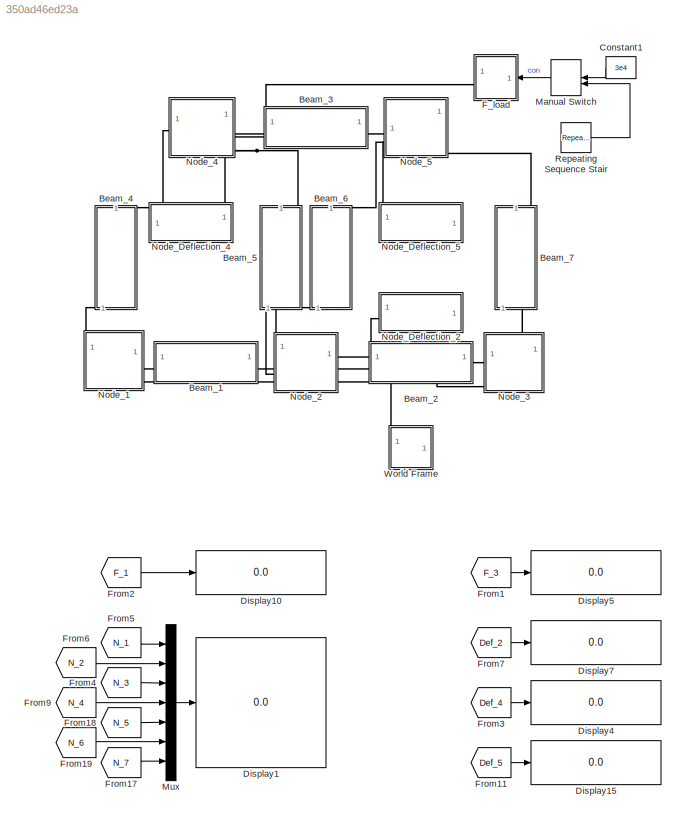
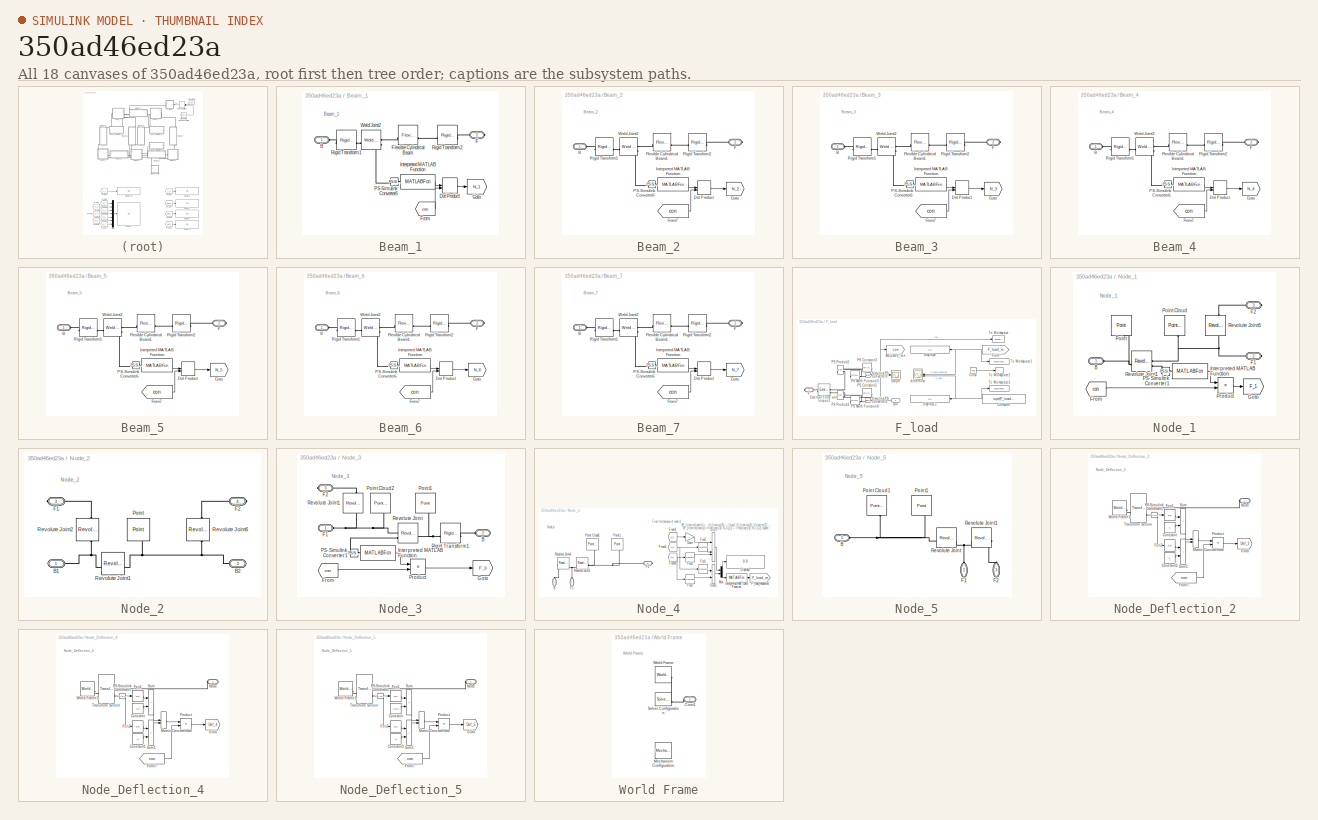
[diagram: thumbnail index - all 18 canvases of the model, root first then tree order]
MODEL slx_350ad46ed23a
KIND model
CONFIG AbsTol = 1e-3
CONFIG EnableMultiTasking = on
CONFIG FixedStep = 0.0001
CONFIG MaxStep = 0.01
CONFIG MinStep = auto
CONFIG RelTol = 1e-3
CONFIG SampleTimeConstraint = Unconstrained
CONFIG SolverName = ode15s
CONFIG StartTime = 0.0
CONFIG StopTime = 100
WORKSPACE source: MATLAB code (in-file)
WORKSPACE F_load_x = 2e3  (= 2000)
WORKSPACE F_load_y = 1e4  (= 10000)
WORKSPACE d = 0.01
WORKSPACE l = 1
WORKSPACE L = l  (= 1)
WORKSPACE H = L*cos(pi/6)
WORKSPACE Density = 7800
WORKSPACE E = 210
WORKSPACE G = 79
WORKSPACE bm = 0.01
WORKSPACE bk = 0.01
WORKSPACE b_rj = 1
WORKSPACE Size_frame = 30
BLOCK [SubSystem] Beam_1
BLOCK [PMIOPort] Beam_1/B
  Side = Left
BLOCK [DotProduct] Beam_1/Dot Product
  OutDataTypeStr = Inherit: Inherit via internal rule
BLOCK [PMIOPort] Beam_1/F
  Port = 2
  Side = Right
BLOCK [Reference] Beam_1/Flexible Cylindrical Beam  REF=sm_lib/Body Elements/Flexible Bodies/Beams/Flexible Cylindrical Beam
  AttributesFormatString = %<Length>
  SourceBlock = sm_lib/Body Elements/Flexible Bodies/Beams/Flexible Cylindrical Beam
  SourceType = Flexible Cylindrical Beam
BLOCK [From] Beam_1/From
  GotoTag = con
  TagVisibility = global
BLOCK [Goto] Beam_1/Goto
  GotoTag = N_1
  TagVisibility = global
BLOCK [MATLABFcn] Beam_1/Interpreted MATLAB Function
  AttributesFormatString = %<Description>
  Description = u(3)
  MATLABFcn = u(3)
BLOCK [Reference] Beam_1/PS-Simulink Converter6  REF=nesl_utility/PS-Simulink
Converter
  SourceBlock = nesl_utility/PS-Simulink\nConverter
  SourceType = PS-Simulink\nConverter
BLOCK [Reference] Beam_1/Rigid Transform1  REF=sm_lib/Frames and
Transforms/Rigid
Transform
  AttributesFormatString = %<RotationStandardAxis>\n%<RotationAngle>
  SourceBlock = sm_lib/Frames and\nTransforms/Rigid\nTransform
  SourceType = Rigid\nTransform
BLOCK [Reference] Beam_1/Rigid Transform2  REF=sm_lib/Frames and
Transforms/Rigid
Transform
  AttributesFormatString = %<RotationStandardAxis>\n%<RotationAngle>
  SourceBlock = sm_lib/Frames and\nTransforms/Rigid\nTransform
  SourceType = Rigid\nTransform
BLOCK [Reference] Beam_1/Weld Joint2  REF=sm_lib/Joints/Weld Joint
  AttributesFormatString = %<Description>
  Description = Force\nsensing
  SourceBlock = sm_lib/Joints/Weld Joint
  SourceType = Weld Joint
BLOCK [SubSystem] Beam_2
BLOCK [PMIOPort] Beam_2/B
  Side = Left
BLOCK [DotProduct] Beam_2/Dot Product
  OutDataTypeStr = Inherit: Inherit via internal rule
BLOCK [PMIOPort] Beam_2/F
  Port = 2
  Side = Right
BLOCK [Reference] Beam_2/Flexible Cylindrical Beam1  REF=sm_lib/Body Elements/Flexible Bodies/Beams/Flexible Cylindrical Beam
  AttributesFormatString = %<Description>
  SourceBlock = sm_lib/Body Elements/Flexible Bodies/Beams/Flexible Cylindrical Beam
  SourceType = Flexible Cylindrical Beam
BLOCK [From] Beam_2/From7
  GotoTag = con
  TagVisibility = global
BLOCK [Goto] Beam_2/Goto
  GotoTag = N_2
  TagVisibility = global
BLOCK [MATLABFcn] Beam_2/Interpreted MATLAB Function
  AttributesFormatString = %<Description>
  Description = u(3)
  MATLABFcn = u(3)
BLOCK [Reference] Beam_2/PS-Simulink Converter6  REF=nesl_utility/PS-Simulink
Converter
  SourceBlock = nesl_utility/PS-Simulink\nConverter
  SourceType = PS-Simulink\nConverter
BLOCK [Reference] Beam_2/Rigid Transform1  REF=sm_lib/Frames and
Transforms/Rigid
Transform
  AttributesFormatString = %<RotationStandardAxis>\n%<RotationAngle> deg
  SourceBlock = sm_lib/Frames and\nTransforms/Rigid\nTransform
  SourceType = Rigid\nTransform
BLOCK [Reference] Beam_2/Rigid Transform2  REF=sm_lib/Frames and
Transforms/Rigid
Transform
  AttributesFormatString = %<RotationStandardAxis>\n%<RotationAngle> deg
  SourceBlock = sm_lib/Frames and\nTransforms/Rigid\nTransform
  SourceType = Rigid\nTransform
BLOCK [Reference] Beam_2/Weld Joint2  REF=sm_lib/Joints/Weld Joint
  AttributesFormatString = %<Description>
  Description = Total force\nsensing
  SourceBlock = sm_lib/Joints/Weld Joint
  SourceType = Weld Joint
BLOCK [SubSystem] Beam_3
  NameLocation = top
BLOCK [PMIOPort] Beam_3/B
  Side = Left
BLOCK [DotProduct] Beam_3/Dot Product
  OutDataTypeStr = Inherit: Inherit via internal rule
BLOCK [PMIOPort] Beam_3/F
  Port = 2
  Side = Right
BLOCK [Reference] Beam_3/Flexible Cylindrical Beam1  REF=sm_lib/Body Elements/Flexible Bodies/Beams/Flexible Cylindrical Beam
  AttributesFormatString = %<Description>
  SourceBlock = sm_lib/Body Elements/Flexible Bodies/Beams/Flexible Cylindrical Beam
  SourceType = Flexible Cylindrical Beam
BLOCK [From] Beam_3/From7
  GotoTag = con
  TagVisibility = global
BLOCK [Goto] Beam_3/Goto
  GotoTag = N_3
  TagVisibility = global
BLOCK [MATLABFcn] Beam_3/Interpreted MATLAB Function
  AttributesFormatString = %<Description>
  Description = u(3)
  MATLABFcn = u(3)
BLOCK [Reference] Beam_3/PS-Simulink Converter6  REF=nesl_utility/PS-Simulink
Converter
  SourceBlock = nesl_utility/PS-Simulink\nConverter
  SourceType = PS-Simulink\nConverter
BLOCK [Reference] Beam_3/Rigid Transform1  REF=sm_lib/Frames and
Transforms/Rigid
Transform
  AttributesFormatString = %<RotationStandardAxis>\n%<RotationAngle> deg
  SourceBlock = sm_lib/Frames and\nTransforms/Rigid\nTransform
  SourceType = Rigid\nTransform
BLOCK [Reference] Beam_3/Rigid Transform2  REF=sm_lib/Frames and
Transforms/Rigid
Transform
  AttributesFormatString = %<RotationStandardAxis>\n%<RotationAngle> deg
  SourceBlock = sm_lib/Frames and\nTransforms/Rigid\nTransform
  SourceType = Rigid\nTransform
BLOCK [Reference] Beam_3/Weld Joint2  REF=sm_lib/Joints/Weld Joint
  AttributesFormatString = %<Description>
  Description = Total force\nsensing
  SourceBlock = sm_lib/Joints/Weld Joint
  SourceType = Weld Joint
BLOCK [SubSystem] Beam_4
  NameLocation = left
BLOCK [PMIOPort] Beam_4/B
  Side = Left
BLOCK [DotProduct] Beam_4/Dot Product
  OutDataTypeStr = Inherit: Inherit via internal rule
BLOCK [PMIOPort] Beam_4/F
  Port = 2
  Side = Right
BLOCK [Reference] Beam_4/Flexible Cylindrical Beam1  REF=sm_lib/Body Elements/Flexible Bodies/Beams/Flexible Cylindrical Beam
  AttributesFormatString = %<Description>
  SourceBlock = sm_lib/Body Elements/Flexible Bodies/Beams/Flexible Cylindrical Beam
  SourceType = Flexible Cylindrical Beam
BLOCK [From] Beam_4/From7
  GotoTag = con
  TagVisibility = global
BLOCK [Goto] Beam_4/Goto
  GotoTag = N_4
  TagVisibility = global
BLOCK [MATLABFcn] Beam_4/Interpreted MATLAB Function
  AttributesFormatString = %<Description>
  Description = u(3)
  MATLABFcn = u(3)
BLOCK [Reference] Beam_4/PS-Simulink Converter6  REF=nesl_utility/PS-Simulink
Converter
  SourceBlock = nesl_utility/PS-Simulink\nConverter
  SourceType = PS-Simulink\nConverter
BLOCK [Reference] Beam_4/Rigid Transform1  REF=sm_lib/Frames and
Transforms/Rigid
Transform
  AttributesFormatString = %<RotationStandardAxis>\n%<RotationAngle> deg
  SourceBlock = sm_lib/Frames and\nTransforms/Rigid\nTransform
  SourceType = Rigid\nTransform
BLOCK [Reference] Beam_4/Rigid Transform2  REF=sm_lib/Frames and
Transforms/Rigid
Transform
  AttributesFormatString = %<RotationStandardAxis>\n%<RotationAngle> deg
  SourceBlock = sm_lib/Frames and\nTransforms/Rigid\nTransform
  SourceType = Rigid\nTransform
BLOCK [Reference] Beam_4/Weld Joint2  REF=sm_lib/Joints/Weld Joint
  AttributesFormatString = %<Description>
  Description = Total force\nsensing
  SourceBlock = sm_lib/Joints/Weld Joint
  SourceType = Weld Joint
BLOCK [SubSystem] Beam_5
  NameLocation = left
BLOCK [PMIOPort] Beam_5/B
  Side = Left
BLOCK [DotProduct] Beam_5/Dot Product
  OutDataTypeStr = Inherit: Inherit via internal rule
BLOCK [PMIOPort] Beam_5/F
  Port = 2
  Side = Right
BLOCK [Reference] Beam_5/Flexible Cylindrical Beam1  REF=sm_lib/Body Elements/Flexible Bodies/Beams/Flexible Cylindrical Beam
  AttributesFormatString = %<Description>
  SourceBlock = sm_lib/Body Elements/Flexible Bodies/Beams/Flexible Cylindrical Beam
  SourceType = Flexible Cylindrical Beam
BLOCK [From] Beam_5/From7
  GotoTag = con
  TagVisibility = global
BLOCK [Goto] Beam_5/Goto
  GotoTag = N_5
  TagVisibility = global
BLOCK [MATLABFcn] Beam_5/Interpreted MATLAB Function
  AttributesFormatString = %<Description>
  Description = u(3)
  MATLABFcn = u(3)
BLOCK [Reference] Beam_5/PS-Simulink Converter6  REF=nesl_utility/PS-Simulink
Converter
  SourceBlock = nesl_utility/PS-Simulink\nConverter
  SourceType = PS-Simulink\nConverter
BLOCK [Reference] Beam_5/Rigid Transform1  REF=sm_lib/Frames and
Transforms/Rigid
Transform
  AttributesFormatString = %<RotationStandardAxis>\n%<RotationAngle> deg
  SourceBlock = sm_lib/Frames and\nTransforms/Rigid\nTransform
  SourceType = Rigid\nTransform
BLOCK [Reference] Beam_5/Rigid Transform2  REF=sm_lib/Frames and
Transforms/Rigid
Transform
  AttributesFormatString = %<RotationStandardAxis>\n%<RotationAngle> deg
  SourceBlock = sm_lib/Frames and\nTransforms/Rigid\nTransform
  SourceType = Rigid\nTransform
BLOCK [Reference] Beam_5/Weld Joint2  REF=sm_lib/Joints/Weld Joint
  AttributesFormatString = %<Description>
  Description = Total force\nsensing
  SourceBlock = sm_lib/Joints/Weld Joint
  SourceType = Weld Joint
BLOCK [SubSystem] Beam_6
  NameLocation = right
BLOCK [PMIOPort] Beam_6/B
  Side = Left
BLOCK [DotProduct] Beam_6/Dot Product
  OutDataTypeStr = Inherit: Inherit via internal rule
BLOCK [PMIOPort] Beam_6/F
  Port = 2
  Side = Right
BLOCK [Reference] Beam_6/Flexible Cylindrical Beam1  REF=sm_lib/Body Elements/Flexible Bodies/Beams/Flexible Cylindrical Beam
  AttributesFormatString = %<Description>
  SourceBlock = sm_lib/Body Elements/Flexible Bodies/Beams/Flexible Cylindrical Beam
  SourceType = Flexible Cylindrical Beam
BLOCK [From] Beam_6/From7
  GotoTag = con
  TagVisibility = global
BLOCK [Goto] Beam_6/Goto
  GotoTag = N_6
  TagVisibility = global
BLOCK [MATLABFcn] Beam_6/Interpreted MATLAB Function
  AttributesFormatString = %<Description>
  Description = u(3)
  MATLABFcn = u(3)
BLOCK [Reference] Beam_6/PS-Simulink Converter6  REF=nesl_utility/PS-Simulink
Converter
  SourceBlock = nesl_utility/PS-Simulink\nConverter
  SourceType = PS-Simulink\nConverter
BLOCK [Reference] Beam_6/Rigid Transform1  REF=sm_lib/Frames and
Transforms/Rigid
Transform
  AttributesFormatString = %<RotationStandardAxis>\n%<RotationAngle> deg
  SourceBlock = sm_lib/Frames and\nTransforms/Rigid\nTransform
  SourceType = Rigid\nTransform
BLOCK [Reference] Beam_6/Rigid Transform2  REF=sm_lib/Frames and
Transforms/Rigid
Transform
  AttributesFormatString = %<RotationStandardAxis>\n%<RotationAngle> deg
  SourceBlock = sm_lib/Frames and\nTransforms/Rigid\nTransform
  SourceType = Rigid\nTransform
BLOCK [Reference] Beam_6/Weld Joint2  REF=sm_lib/Joints/Weld Joint
  AttributesFormatString = %<Description>
  Description = Total force\nsensing
  SourceBlock = sm_lib/Joints/Weld Joint
  SourceType = Weld Joint
BLOCK [SubSystem] Beam_7
  NameLocation = left
BLOCK [PMIOPort] Beam_7/B
  Side = Left
BLOCK [DotProduct] Beam_7/Dot Product
  OutDataTypeStr = Inherit: Inherit via internal rule
BLOCK [PMIOPort] Beam_7/F
  Port = 2
  Side = Right
BLOCK [Reference] Beam_7/Flexible Cylindrical Beam1  REF=sm_lib/Body Elements/Flexible Bodies/Beams/Flexible Cylindrical Beam
  AttributesFormatString = %<Description>
  SourceBlock = sm_lib/Body Elements/Flexible Bodies/Beams/Flexible Cylindrical Beam
  SourceType = Flexible Cylindrical Beam
BLOCK [From] Beam_7/From7
  GotoTag = con
  TagVisibility = global
BLOCK [Goto] Beam_7/Goto
  GotoTag = N_7
  TagVisibility = global
BLOCK [MATLABFcn] Beam_7/Interpreted MATLAB Function
  AttributesFormatString = %<Description>
  Description = u(3)
  MATLABFcn = u(3)
BLOCK [Reference] Beam_7/PS-Simulink Converter6  REF=nesl_utility/PS-Simulink
Converter
  SourceBlock = nesl_utility/PS-Simulink\nConverter
  SourceType = PS-Simulink\nConverter
BLOCK [Reference] Beam_7/Rigid Transform1  REF=sm_lib/Frames and
Transforms/Rigid
Transform
  AttributesFormatString = %<RotationStandardAxis>\n%<RotationAngle> deg
  SourceBlock = sm_lib/Frames and\nTransforms/Rigid\nTransform
  SourceType = Rigid\nTransform
BLOCK [Reference] Beam_7/Rigid Transform2  REF=sm_lib/Frames and
Transforms/Rigid
Transform
  AttributesFormatString = %<RotationStandardAxis>\n%<RotationAngle> deg
  SourceBlock = sm_lib/Frames and\nTransforms/Rigid\nTransform
  SourceType = Rigid\nTransform
BLOCK [Reference] Beam_7/Weld Joint2  REF=sm_lib/Joints/Weld Joint
  AttributesFormatString = %<Description>
  Description = Total force\nsensing
  SourceBlock = sm_lib/Joints/Weld Joint
  SourceType = Weld Joint
BLOCK [Constant] Constant1
  NameLocation = top
  Value = 3e4
BLOCK [Display] Display1
  AttributesFormatString = %<Description>
  Decimation = 1
  Description = N
  Format = long_e
  NameLocation = top
BLOCK [Display] Display10
  AttributesFormatString = %<Description>
  Decimation = 1
  Description = N
  Format = long_e
  NameLocation = top
BLOCK [Display] Display15
  AttributesFormatString = %<Description>
  Decimation = 1
  Description = m
  Format = long_e
  NameLocation = top
BLOCK [Display] Display4
  AttributesFormatString = %<Description>
  Decimation = 1
  Description = m
  Format = long_e
  NameLocation = top
BLOCK [Display] Display5
  AttributesFormatString = %<Description>
  Decimation = 1
  Description = N
  Format = long_e
  NameLocation = top
BLOCK [Display] Display7
  AttributesFormatString = %<Description>
  Decimation = 1
  Description = m
  Format = long_e
  NameLocation = top
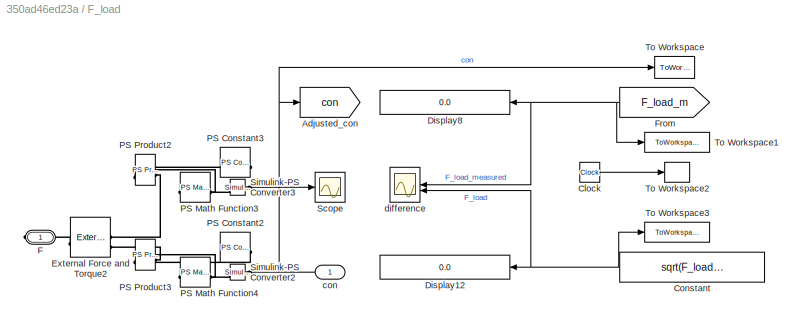
BLOCK [SubSystem] F_load
  AttributesFormatString = %<Fx> =   2000 N\n%<Fy> = 10000 N
BLOCK [Goto] F_load/Adjusted_con
  GotoTag = con
  TagVisibility = global
BLOCK [Clock] F_load/Clock
  Decimation = 1
BLOCK [Constant] F_load/Constant
  NameLocation = top
  Value = sqrt(F_load_x^2 + F_load_y^2)
BLOCK [Display] F_load/Display12
  AttributesFormatString = %<Description>
  Decimation = 1
  Description = N
  Format = long_e
  NameLocation = top
BLOCK [Display] F_load/Display8
  AttributesFormatString = %<Description>
  Decimation = 1
  Description = N
  Format = long_e
  NameLocation = top
BLOCK [Reference] F_load/External Force and Torque2  REF=sm_lib/Forces and
Torques/External Force
and Torque
  NameLocation = top
  SourceBlock = sm_lib/Forces and\nTorques/External Force\nand Torque
  SourceType = External Force\nand Torque
BLOCK [PMIOPort] F_load/F
  Side = Right
BLOCK [From] F_load/From
  GotoTag = F_load_m
  NameLocation = top
  TagVisibility = global
BLOCK [Reference] F_load/PS Constant2  REF=fl_lib/Physical Signals/Sources/PS Constant
  AttributesFormatString = %<constant>
  NameLocation = top
  SourceBlock = fl_lib/Physical Signals/Sources/PS Constant
  SourceType = PS Constant
BLOCK [Reference] F_load/PS Constant3  REF=fl_lib/Physical Signals/Sources/PS Constant
  AttributesFormatString = %<constant>
  NameLocation = top
  SourceBlock = fl_lib/Physical Signals/Sources/PS Constant
  SourceType = PS Constant
BLOCK [Reference] F_load/PS Math Function3  REF=fl_lib/Physical Signals/Functions/PS Math Function
  NameLocation = top
  SourceBlock = fl_lib/Physical Signals/Functions/PS Math Function
  SourceType = PS Math Function
BLOCK [Reference] F_load/PS Math Function4  REF=fl_lib/Physical Signals/Functions/PS Math Function
  NameLocation = top
  SourceBlock = fl_lib/Physical Signals/Functions/PS Math Function
  SourceType = PS Math Function
BLOCK [Reference] F_load/PS Product2  REF=fl_lib/Physical Signals/Functions/PS Product
  NameLocation = top
  SourceBlock = fl_lib/Physical Signals/Functions/PS Product
  SourceType = PS Product
BLOCK [Reference] F_load/PS Product3  REF=fl_lib/Physical Signals/Functions/PS Product
  NameLocation = top
  SourceBlock = fl_lib/Physical Signals/Functions/PS Product
  SourceType = PS Product
BLOCK [Scope] F_load/Scope
  Floating = off
  NumInputPorts = 1
  ScopeSpecificationString = Simulink.scopes.TimeScopeBlockCfg('CurrentConfiguration', extmgr.ConfigurationSet(extmgr.Configuration('Core','General UI',true),extmgr.Configuration('Core','Source UI',true),extmgr.Configuration('Sources','WiredSimulink',true,'DataLoggingVariableName','ScopeData1'),extmgr.Configuration('Visuals','Time Domain',true,'SerializedDisplays',{struct('MinYLimReal','-374887.5','MaxYLimReal','3374987.5','Y...<+1711ch>
BLOCK [Reference] F_load/Simulink-PS Converter2  REF=nesl_utility/Simulink-PS
Converter
  NameLocation = top
  SourceBlock = nesl_utility/Simulink-PS\nConverter
  SourceType = Simulink-PS\nConverter
BLOCK [Reference] F_load/Simulink-PS Converter3  REF=nesl_utility/Simulink-PS
Converter
  NameLocation = top
  SourceBlock = nesl_utility/Simulink-PS\nConverter
  SourceType = Simulink-PS\nConverter
BLOCK [ToWorkspace] F_load/To Workspace
  FixptAsFi = on
  MaxDataPoints = inf
  SampleTime = -1
  VariableName = con_out
BLOCK [ToWorkspace] F_load/To Workspace1
  Decimation = 3
  FixptAsFi = on
  MaxDataPoints = inf
  SampleTime = -1
  VariableName = F_load_m_out
BLOCK [ToWorkspace] F_load/To Workspace2
  Decimation = 3
  FixptAsFi = on
  MaxDataPoints = inf
  SampleTime = -1
  VariableName = t_out
BLOCK [ToWorkspace] F_load/To Workspace3
  Decimation = 3
  FixptAsFi = on
  MaxDataPoints = inf
  SampleTime = -1
  VariableName = F_load_out
BLOCK [Inport] F_load/con
BLOCK [Scope] F_load/difference
  Floating = off
  NumInputPorts = 2
  ScopeSpecificationString = Simulink.scopes.TimeScopeBlockCfg('CurrentConfiguration', extmgr.ConfigurationSet(extmgr.Configuration('Core','General UI',true),extmgr.Configuration('Core','Source UI',true),extmgr.Configuration('Sources','WiredSimulink',true),extmgr.Configuration('Visuals','Time Domain',true,'SerializedDisplays',{struct('MinYLimReal','10198.01845','MaxYLimReal','10198.0597','YLabelReal','','MinYLimMag','10198.01...<+1967ch>
BLOCK [From] From1
  GotoTag = F_3
  TagVisibility = global
BLOCK [From] From11
  GotoTag = Def_5
  TagVisibility = global
BLOCK [From] From17
  GotoTag = N_7
  TagVisibility = global
BLOCK [From] From18
  GotoTag = N_5
  TagVisibility = global
BLOCK [From] From19
  GotoTag = N_6
  TagVisibility = global
BLOCK [From] From2
  GotoTag = F_1
  TagVisibility = global
BLOCK [From] From3
  GotoTag = Def_4
  TagVisibility = global
BLOCK [From] From4
  GotoTag = N_3
  TagVisibility = global
BLOCK [From] From5
  GotoTag = N_1
  TagVisibility = global
BLOCK [From] From6
  GotoTag = N_2
  TagVisibility = global
BLOCK [From] From7
  GotoTag = Def_2
  TagVisibility = global
BLOCK [From] From9
  GotoTag = N_4
  TagVisibility = global
BLOCK [ManualSwitch] Manual Switch
  CurrentSetting = 0
  NameLocation = top
BLOCK [Mux] Mux
  DisplayOption = bar
  Inputs = 7
BLOCK [SubSystem] Node_1
  NameLocation = left
  PortSchema = {"entries":[{"content":{"sides":[{"content":{},"type":"ConnectorPlacement.EquallySpacedRectSide","uuid":"d437545a-b6cd-405c-92f5-dfd428dd316c"},{"content":{"connectorIds":["RConn1"],"side":"RIGHT"},"type":"ConnectorPlacement.EquallySpacedRectSide","uuid":"a6c866cb-015a-4ba6-a725-1ad5f0a48a96"},{"content":{"connectorIds":["LConn1"],"side":"TOP"},"type":"ConnectorPlacement.EquallySpacedRectSide","uu...<+380ch>
BLOCK [PMIOPort] Node_1/B
  Side = Left
BLOCK [PMIOPort] Node_1/F1
  Port = 2
  Side = Right
BLOCK [PMIOPort] Node_1/F2
  Port = 3
  Side = Right
BLOCK [From] Node_1/From
  GotoTag = con
  TagVisibility = global
BLOCK [Goto] Node_1/Goto
  GotoTag = F_1
  TagVisibility = global
BLOCK [MATLABFcn] Node_1/Interpreted MATLAB Function
  AttributesFormatString = %<Description>
  Description = u(1:2)
  MATLABFcn = u(1:2)
BLOCK [Reference] Node_1/PS-Simulink Converter1  REF=nesl_utility/PS-Simulink
Converter
  SourceBlock = nesl_utility/PS-Simulink\nConverter
  SourceType = PS-Simulink\nConverter
BLOCK [Reference] Node_1/Point  REF=sm_lib/Curves and Surfaces/Point
  AttributesFormatString = %<Description>
  Description = Frame\nvisualization
  NameLocation = right
  SourceBlock = sm_lib/Curves and Surfaces/Point
  SourceType = Point
BLOCK [Reference] Node_1/Point Cloud  REF=sm_lib/Curves and Surfaces/Point Cloud
  AttributesFormatString = %<Description>
  Description = Graphic\nsphere
  NameLocation = right
  SourceBlock = sm_lib/Curves and Surfaces/Point Cloud
  SourceType = Point Cloud
BLOCK [Product] Node_1/Product
BLOCK [Reference] Node_1/Revolute Joint1  REF=sm_lib/Joints/Revolute Joint
  Description = Total force\nsensing
  SourceBlock = sm_lib/Joints/Revolute Joint
  SourceType = Revolute Joint
BLOCK [Reference] Node_1/Revolute Joint6  REF=sm_lib/Joints/Revolute Joint
  AttributesFormatString = %<PositionTargetValue>
  NameLocation = right
  SourceBlock = sm_lib/Joints/Revolute Joint
  SourceType = Revolute Joint
BLOCK [SubSystem] Node_2
  PortSchema = {"entries":[{"content":{"sides":[{"content":{"connectorIds":["LConn1"]},"type":"ConnectorPlacement.EquallySpacedRectSide","uuid":"afef6c51-8d1a-46bc-b1c6-0f4974bd4a7e"},{"content":{"connectorIds":["RConn1"],"side":"RIGHT"},"type":"ConnectorPlacement.EquallySpacedRectSide","uuid":"d0b349a1-0497-425d-af85-a98150ab0495"},{"content":{"side":"TOP"},"type":"ConnectorPlacement.EquallySpacedRectSide","uui...<+388ch>
BLOCK [PMIOPort] Node_2/B1
  Side = Left
BLOCK [PMIOPort] Node_2/B2
  Port = 2
  Side = Right
BLOCK [PMIOPort] Node_2/F1
  Port = 3
  Side = Right
BLOCK [PMIOPort] Node_2/F2
  Port = 4
  Side = Right
BLOCK [Reference] Node_2/Point  REF=sm_lib/Curves and Surfaces/Point
  AttributesFormatString = %<Description>
  Description = Frame\nvisualization
  NameLocation = right
  SourceBlock = sm_lib/Curves and Surfaces/Point
  SourceType = Point
BLOCK [Reference] Node_2/Revolute Joint1  REF=sm_lib/Joints/Revolute Joint
  AttributesFormatString = %<PositionTargetValue>
  SourceBlock = sm_lib/Joints/Revolute Joint
  SourceType = Revolute Joint
BLOCK [Reference] Node_2/Revolute Joint2  REF=sm_lib/Joints/Revolute Joint
  NameLocation = right
  SourceBlock = sm_lib/Joints/Revolute Joint
  SourceType = Revolute Joint
BLOCK [Reference] Node_2/Revolute Joint6  REF=sm_lib/Joints/Revolute Joint
  AttributesFormatString = %<PositionTargetValue>
  NameLocation = right
  SourceBlock = sm_lib/Joints/Revolute Joint
  SourceType = Revolute Joint
BLOCK [SubSystem] Node_3
  NameLocation = right
  PortSchema = {"entries":[{"content":{"sides":[{"content":{"connectorIds":["LConn1"]},"type":"ConnectorPlacement.EquallySpacedRectSide","uuid":"c52cac6f-2005-4bfe-89ae-e2a0406bbacd"},{"content":{"side":"RIGHT"},"type":"ConnectorPlacement.EquallySpacedRectSide","uuid":"5ceadddb-1bc3-405b-9850-d33e8ff0b50d"},{"content":{"connectorIds":["LConn2"],"side":"TOP"},"type":"ConnectorPlacement.EquallySpacedRectSide","uui...<+379ch>
BLOCK [PMIOPort] Node_3/B
  Port = 2
  Side = Left
BLOCK [PMIOPort] Node_3/F1
  Side = Left
BLOCK [PMIOPort] Node_3/F2
  Port = 3
  Side = Right
BLOCK [From] Node_3/From
  GotoTag = con
  TagVisibility = global
BLOCK [Goto] Node_3/Goto
  GotoTag = F_3
  TagVisibility = global
BLOCK [MATLABFcn] Node_3/Interpreted MATLAB Function
  AttributesFormatString = %<Description>
  Description = u(1:2)
  MATLABFcn = u(1:2)
BLOCK [Reference] Node_3/PS-Simulink Converter1  REF=nesl_utility/PS-Simulink
Converter
  SourceBlock = nesl_utility/PS-Simulink\nConverter
  SourceType = PS-Simulink\nConverter
BLOCK [Reference] Node_3/Point Cloud2  REF=sm_lib/Curves and Surfaces/Point Cloud
  AttributesFormatString = %<Description>
  Description = Graphic\nsphere
  NameLocation = right
  SourceBlock = sm_lib/Curves and Surfaces/Point Cloud
  SourceType = Point Cloud
BLOCK [Reference] Node_3/Point1  REF=sm_lib/Curves and Surfaces/Point
  AttributesFormatString = %<Description>
  Description = Frame\nvisualization
  NameLocation = right
  SourceBlock = sm_lib/Curves and Surfaces/Point
  SourceType = Point
BLOCK [Product] Node_3/Product
BLOCK [Reference] Node_3/Revolute Joint  REF=sm_lib/Joints/Revolute Joint
  NameLocation = top
  SourceBlock = sm_lib/Joints/Revolute Joint
  SourceType = Revolute Joint
BLOCK [Reference] Node_3/Revolute Joint1  REF=sm_lib/Joints/Revolute Joint
  NameLocation = right
  SourceBlock = sm_lib/Joints/Revolute Joint
  SourceType = Revolute Joint
BLOCK [Reference] Node_3/Rigid Transform1  REF=sm_lib/Frames and
Transforms/Rigid
Transform
  AttributesFormatString = %<Description>\n%<TranslationCartesianOffset>
  Description = Offset
  SourceBlock = sm_lib/Frames and\nTransforms/Rigid\nTransform
  SourceType = Rigid\nTransform
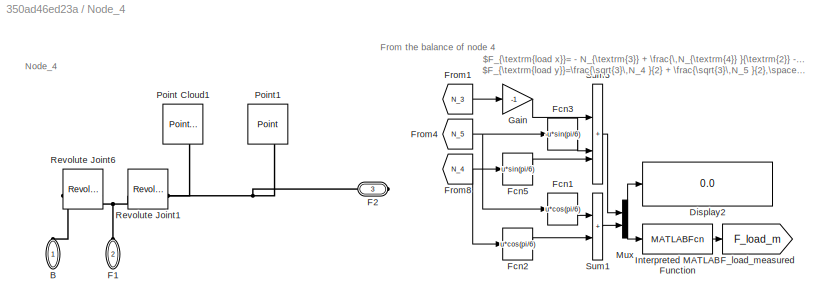
BLOCK [SubSystem] Node_4
  NameLocation = top
  PortSchema = {"entries":[{"content":{"sides":[{"content":{},"type":"ConnectorPlacement.EquallySpacedRectSide","uuid":"beaa1c3e-db26-40c7-ae29-b74306d70d13"},{"content":{"connectorIds":["RConn1"],"side":"RIGHT"},"type":"ConnectorPlacement.EquallySpacedRectSide","uuid":"a69b9587-50d9-4008-b2d1-888e5f048004"},{"content":{"connectorIds":["LConn1","LConn2"],"side":"TOP"},"type":"ConnectorPlacement.EquallySpacedRect...<+237ch>
BLOCK [PMIOPort] Node_4/B
  NameLocation = right
  Side = Left
BLOCK [Display] Node_4/Display2
  AttributesFormatString = %<Description>
  Decimation = 1
  Description = N
  Format = long_e
  NameLocation = top
BLOCK [PMIOPort] Node_4/F1
  NameLocation = right
  Port = 2
  Side = Left
BLOCK [PMIOPort] Node_4/F2
  Port = 3
  Side = Right
BLOCK [Goto] Node_4/F_load_measured
  GotoTag = F_load_m
  TagVisibility = global
BLOCK [Fcn] Node_4/Fcn1
  AttributesFormatString = %<Expr>
  Description = -u/sqrt(2)
  Expr = u*cos(pi/6)
BLOCK [Fcn] Node_4/Fcn2
  AttributesFormatString = %<Expr>
  Description = -u/sqrt(2)
  Expr = u*cos(pi/6)
BLOCK [Fcn] Node_4/Fcn3
  AttributesFormatString = %<Expr>
  Description = -u/sqrt(2)
  Expr = -u*sin(pi/6)
BLOCK [Fcn] Node_4/Fcn5
  AttributesFormatString = %<Expr>
  Description = -u/sqrt(2)
  Expr = u*sin(pi/6)
BLOCK [From] Node_4/From1
  GotoTag = N_3
  TagVisibility = global
BLOCK [From] Node_4/From4
  GotoTag = N_5
  TagVisibility = global
BLOCK [From] Node_4/From8
  GotoTag = N_4
  TagVisibility = global
BLOCK [Gain] Node_4/Gain
  Gain = -1
BLOCK [MATLABFcn] Node_4/Interpreted MATLAB Function
  AttributesFormatString = %<Description>
  Description = Norm
  MATLABFcn = norm(u)
BLOCK [Mux] Node_4/Mux
  DisplayOption = bar
  Inputs = 2
BLOCK [Reference] Node_4/Point Cloud1  REF=sm_lib/Curves and Surfaces/Point Cloud
  AttributesFormatString = %<Description>
  Description = Graphic\nsphere
  NameLocation = right
  SourceBlock = sm_lib/Curves and Surfaces/Point Cloud
  SourceType = Point Cloud
BLOCK [Reference] Node_4/Point1  REF=sm_lib/Curves and Surfaces/Point
  AttributesFormatString = %<Description>
  Description = Frame\nvisualization
  NameLocation = right
  SourceBlock = sm_lib/Curves and Surfaces/Point
  SourceType = Point
BLOCK [Reference] Node_4/Revolute Joint1  REF=sm_lib/Joints/Revolute Joint
  AttributesFormatString = %<PositionTargetValue>
  SourceBlock = sm_lib/Joints/Revolute Joint
  SourceType = Revolute Joint
BLOCK [Reference] Node_4/Revolute Joint6  REF=sm_lib/Joints/Revolute Joint
  AttributesFormatString = %<PositionTargetValue>
  SourceBlock = sm_lib/Joints/Revolute Joint
  SourceType = Revolute Joint
BLOCK [Sum] Node_4/Sum1
  IconShape = rectangular
  NameLocation = top
BLOCK [Sum] Node_4/Sum3
  IconShape = rectangular
  Inputs = 3
  NameLocation = top
BLOCK [SubSystem] Node_5
  NameLocation = top
  PortSchema = {"entries":[{"content":{"sides":[{"content":{"connectorIds":["LConn1"]},"type":"ConnectorPlacement.EquallySpacedRectSide","uuid":"beaa1c3e-db26-40c7-ae29-b74306d70d13"},{"content":{"side":"RIGHT"},"type":"ConnectorPlacement.EquallySpacedRectSide","uuid":"a69b9587-50d9-4008-b2d1-888e5f048004"},{"content":{"connectorIds":["LConn2","LConn3"],"side":"TOP"},"type":"ConnectorPlacement.EquallySpacedRectS...<+236ch>
BLOCK [PMIOPort] Node_5/B
  Side = Left
BLOCK [PMIOPort] Node_5/F1
  NameLocation = right
  Port = 2
  Side = Left
BLOCK [PMIOPort] Node_5/F2
  NameLocation = right
  Port = 3
  Side = Left
BLOCK [Reference] Node_5/Point Cloud1  REF=sm_lib/Curves and Surfaces/Point Cloud
  AttributesFormatString = %<Description>
  Description = Graphic\nsphere
  NameLocation = right
  SourceBlock = sm_lib/Curves and Surfaces/Point Cloud
  SourceType = Point Cloud
BLOCK [Reference] Node_5/Point1  REF=sm_lib/Curves and Surfaces/Point
  AttributesFormatString = %<Description>
  Description = Frame\nvisualization
  NameLocation = right
  SourceBlock = sm_lib/Curves and Surfaces/Point
  SourceType = Point
BLOCK [Reference] Node_5/Revolute Joint  REF=sm_lib/Joints/Revolute Joint
  SourceBlock = sm_lib/Joints/Revolute Joint
  SourceType = Revolute Joint
BLOCK [Reference] Node_5/Revolute Joint1  REF=sm_lib/Joints/Revolute Joint
  AttributesFormatString = %<PositionTargetValue>
  SourceBlock = sm_lib/Joints/Revolute Joint
  SourceType = Revolute Joint
BLOCK [SubSystem] Node_Deflection_2
  NameLocation = top
BLOCK [Constant] Node_Deflection_2/Constant
  Value = -L
BLOCK [Constant] Node_Deflection_2/Constant1
  Value = 0
BLOCK [Fcn] Node_Deflection_2/Fcn1
  Expr = u(1)
BLOCK [Fcn] Node_Deflection_2/Fcn2
  Expr = u(2)
BLOCK [From] Node_Deflection_2/From7
  GotoTag = con
  TagVisibility = global
BLOCK [Goto] Node_Deflection_2/Goto
  GotoTag = Def_2
  TagVisibility = global
BLOCK [Concatenate] Node_Deflection_2/Matrix Concatenate
  AttributesFormatString = %<Description>
  ConcatenateDimension = 2
BLOCK [PMIOPort] Node_Deflection_2/Node
  Side = Left
BLOCK [Reference] Node_Deflection_2/PS-Simulink Converter1  REF=nesl_utility/PS-Simulink
Converter
  SourceBlock = nesl_utility/PS-Simulink\nConverter
  SourceType = PS-Simulink\nConverter
BLOCK [Product] Node_Deflection_2/Product
BLOCK [Sum] Node_Deflection_2/Sum
  IconShape = rectangular
  Inputs = 2
BLOCK [Sum] Node_Deflection_2/Sum1
  IconShape = rectangular
  Inputs = 2
BLOCK [Reference] Node_Deflection_2/Transform Sensor  REF=sm_lib/Frames and
Transforms/Transform
Sensor
  AttributesFormatString = %<Description>
  Description = Translation\n[x, y, z]
  SourceBlock = sm_lib/Frames and\nTransforms/Transform\nSensor
  SourceType = Transform\nSensor
BLOCK [Reference] Node_Deflection_2/World Frame1  REF=sm_lib/Frames and
Transforms/World Frame
  SourceBlock = sm_lib/Frames and\nTransforms/World Frame
  SourceType = World Frame
BLOCK [SubSystem] Node_Deflection_4
  NameLocation = top
BLOCK [Constant] Node_Deflection_4/Constant
  Value = -L/2
BLOCK [Constant] Node_Deflection_4/Constant1
  Value = -H
BLOCK [Fcn] Node_Deflection_4/Fcn1
  Expr = u(1)
BLOCK [Fcn] Node_Deflection_4/Fcn2
  Expr = u(2)
BLOCK [From] Node_Deflection_4/From7
  GotoTag = con
  TagVisibility = global
BLOCK [Goto] Node_Deflection_4/Goto
  GotoTag = Def_4
  TagVisibility = global
BLOCK [Concatenate] Node_Deflection_4/Matrix Concatenate
  AttributesFormatString = %<Description>
  ConcatenateDimension = 2
BLOCK [PMIOPort] Node_Deflection_4/Node
  Side = Left
BLOCK [Reference] Node_Deflection_4/PS-Simulink Converter1  REF=nesl_utility/PS-Simulink
Converter
  SourceBlock = nesl_utility/PS-Simulink\nConverter
  SourceType = PS-Simulink\nConverter
BLOCK [Product] Node_Deflection_4/Product
BLOCK [Sum] Node_Deflection_4/Sum
  IconShape = rectangular
  Inputs = 2
BLOCK [Sum] Node_Deflection_4/Sum1
  IconShape = rectangular
  Inputs = 2
BLOCK [Reference] Node_Deflection_4/Transform Sensor  REF=sm_lib/Frames and
Transforms/Transform
Sensor
  AttributesFormatString = %<Description>
  Description = Translation\n[x, y, z]
  SourceBlock = sm_lib/Frames and\nTransforms/Transform\nSensor
  SourceType = Transform\nSensor
BLOCK [Reference] Node_Deflection_4/World Frame1  REF=sm_lib/Frames and
Transforms/World Frame
  SourceBlock = sm_lib/Frames and\nTransforms/World Frame
  SourceType = World Frame
BLOCK [SubSystem] Node_Deflection_5
  NameLocation = top
BLOCK [Constant] Node_Deflection_5/Constant
  Value = -L*3/2
BLOCK [Constant] Node_Deflection_5/Constant3
  Value = -H
BLOCK [Fcn] Node_Deflection_5/Fcn1
  Expr = u(1)
BLOCK [Fcn] Node_Deflection_5/Fcn2
  Expr = u(2)
BLOCK [From] Node_Deflection_5/From7
  GotoTag = con
  TagVisibility = global
BLOCK [Goto] Node_Deflection_5/Goto
  GotoTag = Def_5
  TagVisibility = global
BLOCK [Concatenate] Node_Deflection_5/Matrix Concatenate
  AttributesFormatString = %<Description>
  ConcatenateDimension = 2
BLOCK [PMIOPort] Node_Deflection_5/Node
  Side = Left
BLOCK [Reference] Node_Deflection_5/PS-Simulink Converter1  REF=nesl_utility/PS-Simulink
Converter
  SourceBlock = nesl_utility/PS-Simulink\nConverter
  SourceType = PS-Simulink\nConverter
BLOCK [Product] Node_Deflection_5/Product
BLOCK [Sum] Node_Deflection_5/Sum
  IconShape = rectangular
  Inputs = 2
BLOCK [Sum] Node_Deflection_5/Sum1
  IconShape = rectangular
  Inputs = 2
BLOCK [Reference] Node_Deflection_5/Transform Sensor  REF=sm_lib/Frames and
Transforms/Transform
Sensor
  AttributesFormatString = %<Description>
  Description = Translation\n[x, y, z]
  SourceBlock = sm_lib/Frames and\nTransforms/Transform\nSensor
  SourceType = Transform\nSensor
BLOCK [Reference] Node_Deflection_5/World Frame1  REF=sm_lib/Frames and
Transforms/World Frame
  SourceBlock = sm_lib/Frames and\nTransforms/World Frame
  SourceType = World Frame
BLOCK [Reference] Repeating Sequence Stair  REF=simulink/Sources/Repeating
Sequence
Stair
  AttributesFormatString = %<OutValues>\nSampleTime=%<tsamp> s
  SourceBlock = simulink/Sources/Repeating\nSequence\nStair
  SourceType = Repeating Sequence Stair
BLOCK [SubSystem] World Frame
  PortSchema = {"entries":[{"content":{"sides":[{"content":{},"type":"ConnectorPlacement.EquallySpacedRectSide","uuid":"6a8e21d3-b0b2-4758-a6c8-a7be5ecb73b9"},{"content":{"side":"RIGHT"},"type":"ConnectorPlacement.EquallySpacedRectSide","uuid":"42798d98-bef9-4838-9935-056c1ef1235d"},{"content":{"connectorIds":["LConn1"],"side":"TOP"},"type":"ConnectorPlacement.EquallySpacedRectSide","uuid":"7c8f84cf-9fc0-4b00-b0...<+202ch>
BLOCK [PMIOPort] World Frame/Conn1
  Side = Left
BLOCK [Reference] World Frame/Mechanism Configuration  REF=sm_lib/Utilities/Mechanism
Configuration
  SourceBlock = sm_lib/Utilities/Mechanism\nConfiguration
  SourceType = Mechanism\nConfiguration
BLOCK [Reference] World Frame/Solver Configuration  REF=nesl_utility/Solver
Configuration
  SourceBlock = nesl_utility/Solver\nConfiguration
  SourceType = Solver\nConfiguration
BLOCK [Reference] World Frame/World Frame  REF=sm_lib/Frames and
Transforms/World Frame
  SourceBlock = sm_lib/Frames and\nTransforms/World Frame
  SourceType = World Frame
ANNOTATION Beam_1: Beam_1
ANNOTATION Beam_2: Beam_2
ANNOTATION Beam_3: Beam_3
ANNOTATION Beam_4: Beam_4
ANNOTATION Beam_5: Beam_5
ANNOTATION Beam_6: Beam_6
ANNOTATION Beam_7: Beam_7
ANNOTATION Node_1: Node_1
ANNOTATION Node_2: Node_2
ANNOTATION Node_3: Node_3
ANNOTATION Node_4: $F_{\textrm{load x}}= - N_{\textrm{3}} + \frac{\,N_{\textrm{4}} }{\textrm{2}} - \frac{\,N_{\textrm{5}} }{\textrm{2}},\space(1)$ $F_{\textrm{load y}}=\frac{\sqrt{3}\,N_4 }{2} + \frac{\sqrt{3}\,N_5 }{2},\space(2)$
ANNOTATION Node_4: From the balance of node 4
ANNOTATION Node_4: Node_4
ANNOTATION Node_5: Node_5
ANNOTATION Node_Deflection_2: Node_Deflection_2
ANNOTATION Node_Deflection_4: Node_Deflection_4
ANNOTATION Node_Deflection_5: Node_Deflection_5
ANNOTATION World Frame: World Frame
LINE Beam_1/Dot Product:1 -> Beam_1/Goto:1
LINE Beam_1/From:1 -> Beam_1/Dot Product:2
LINE Beam_1/Interpreted MATLAB Function:1 -> Beam_1/Dot Product:1
LINE Beam_1/PS-Simulink Converter6:1 -> Beam_1/Interpreted MATLAB Function:1
LINE Beam_2/Dot Product:1 -> Beam_2/Goto:1
LINE Beam_2/From7:1 -> Beam_2/Dot Product:2
LINE Beam_2/Interpreted MATLAB Function:1 -> Beam_2/Dot Product:1
LINE Beam_2/PS-Simulink Converter6:1 -> Beam_2/Interpreted MATLAB Function:1
LINE Beam_3/Dot Product:1 -> Beam_3/Goto:1
LINE Beam_3/From7:1 -> Beam_3/Dot Product:2
LINE Beam_3/Interpreted MATLAB Function:1 -> Beam_3/Dot Product:1
LINE Beam_3/PS-Simulink Converter6:1 -> Beam_3/Interpreted MATLAB Function:1
LINE Beam_4/Dot Product:1 -> Beam_4/Goto:1
LINE Beam_4/From7:1 -> Beam_4/Dot Product:2
LINE Beam_4/Interpreted MATLAB Function:1 -> Beam_4/Dot Product:1
LINE Beam_4/PS-Simulink Converter6:1 -> Beam_4/Interpreted MATLAB Function:1
LINE Beam_5/Dot Product:1 -> Beam_5/Goto:1
LINE Beam_5/From7:1 -> Beam_5/Dot Product:2
LINE Beam_5/Interpreted MATLAB Function:1 -> Beam_5/Dot Product:1
LINE Beam_5/PS-Simulink Converter6:1 -> Beam_5/Interpreted MATLAB Function:1
LINE Beam_6/Dot Product:1 -> Beam_6/Goto:1
LINE Beam_6/From7:1 -> Beam_6/Dot Product:2
LINE Beam_6/Interpreted MATLAB Function:1 -> Beam_6/Dot Product:1
LINE Beam_6/PS-Simulink Converter6:1 -> Beam_6/Interpreted MATLAB Function:1
LINE Beam_7/Dot Product:1 -> Beam_7/Goto:1
LINE Beam_7/From7:1 -> Beam_7/Dot Product:2
LINE Beam_7/Interpreted MATLAB Function:1 -> Beam_7/Dot Product:1
LINE Beam_7/PS-Simulink Converter6:1 -> Beam_7/Interpreted MATLAB Function:1
LINE Constant1:1 -> Manual Switch:1
LINE F_load/Clock:1 -> F_load/To Workspace2:1
NET F_load/Constant:1 -> F_load/Display12:1, F_load/To Workspace3:1, F_load/difference:2
NET F_load/From:1 -> F_load/Display8:1, F_load/To Workspace1:1, F_load/difference:1
NET F_load/con:1 -> F_load/Adjusted_con:1, F_load/Scope:1, F_load/Simulink-PS Converter2:1, F_load/Simulink-PS Converter3:1, F_load/To Workspace:1
LINE From11:1 -> Display15:1
LINE From17:1 -> Mux:7
LINE From18:1 -> Mux:5
LINE From19:1 -> Mux:6
LINE From1:1 -> Display5:1
LINE From2:1 -> Display10:1
LINE From3:1 -> Display4:1
LINE From4:1 -> Mux:3
LINE From5:1 -> Mux:1
LINE From6:1 -> Mux:2
LINE From7:1 -> Display7:1
LINE From9:1 -> Mux:4
LINE Manual Switch:1 -> F_load:1
LINE Mux:1 -> Display1:1
LINE Node_1/From:1 -> Node_1/Product:2
LINE Node_1/Interpreted MATLAB Function:1 -> Node_1/Product:1
LINE Node_1/PS-Simulink Converter1:1 -> Node_1/Interpreted MATLAB Function:1
LINE Node_1/Product:1 -> Node_1/Goto:1
LINE Node_3/From:1 -> Node_3/Product:2
LINE Node_3/Interpreted MATLAB Function:1 -> Node_3/Product:1
LINE Node_3/PS-Simulink Converter1:1 -> Node_3/Interpreted MATLAB Function:1
LINE Node_3/Product:1 -> Node_3/Goto:1
LINE Node_4/Fcn1:1 -> Node_4/Sum1:1
LINE Node_4/Fcn2:1 -> Node_4/Sum1:2
LINE Node_4/Fcn3:1 -> Node_4/Sum3:2
LINE Node_4/Fcn5:1 -> Node_4/Sum3:3
LINE Node_4/From1:1 -> Node_4/Gain:1
NET Node_4/From4:1 -> Node_4/Fcn1:1, Node_4/Fcn3:1
NET Node_4/From8:1 -> Node_4/Fcn2:1, Node_4/Fcn5:1
LINE Node_4/Gain:1 -> Node_4/Sum3:1
LINE Node_4/Interpreted MATLAB Function:1 -> Node_4/F_load_measured:1
NET Node_4/Mux:1 -> Node_4/Display2:1, Node_4/Interpreted MATLAB Function:1
LINE Node_4/Sum1:1 -> Node_4/Mux:2
LINE Node_4/Sum3:1 -> Node_4/Mux:1
LINE Node_Deflection_2/Constant1:1 -> Node_Deflection_2/Sum1:2
LINE Node_Deflection_2/Constant:1 -> Node_Deflection_2/Sum:2
LINE Node_Deflection_2/Fcn1:1 -> Node_Deflection_2/Sum:1
LINE Node_Deflection_2/Fcn2:1 -> Node_Deflection_2/Sum1:1
LINE Node_Deflection_2/From7:1 -> Node_Deflection_2/Product:2
LINE Node_Deflection_2/Matrix Concatenate:1 -> Node_Deflection_2/Product:1
NET Node_Deflection_2/PS-Simulink Converter1:1 -> Node_Deflection_2/Fcn1:1, Node_Deflection_2/Fcn2:1
LINE Node_Deflection_2/Product:1 -> Node_Deflection_2/Goto:1
LINE Node_Deflection_2/Sum1:1 -> Node_Deflection_2/Matrix Concatenate:2
LINE Node_Deflection_2/Sum:1 -> Node_Deflection_2/Matrix Concatenate:1
LINE Node_Deflection_4/Constant1:1 -> Node_Deflection_4/Sum1:2
LINE Node_Deflection_4/Constant:1 -> Node_Deflection_4/Sum:2
LINE Node_Deflection_4/Fcn1:1 -> Node_Deflection_4/Sum:1
LINE Node_Deflection_4/Fcn2:1 -> Node_Deflection_4/Sum1:1
LINE Node_Deflection_4/From7:1 -> Node_Deflection_4/Product:2
LINE Node_Deflection_4/Matrix Concatenate:1 -> Node_Deflection_4/Product:1
NET Node_Deflection_4/PS-Simulink Converter1:1 -> Node_Deflection_4/Fcn1:1, Node_Deflection_4/Fcn2:1
LINE Node_Deflection_4/Product:1 -> Node_Deflection_4/Goto:1
LINE Node_Deflection_4/Sum1:1 -> Node_Deflection_4/Matrix Concatenate:2
LINE Node_Deflection_4/Sum:1 -> Node_Deflection_4/Matrix Concatenate:1
LINE Node_Deflection_5/Constant3:1 -> Node_Deflection_5/Sum1:2
LINE Node_Deflection_5/Constant:1 -> Node_Deflection_5/Sum:2
LINE Node_Deflection_5/Fcn1:1 -> Node_Deflection_5/Sum:1
LINE Node_Deflection_5/Fcn2:1 -> Node_Deflection_5/Sum1:1
LINE Node_Deflection_5/From7:1 -> Node_Deflection_5/Product:2
LINE Node_Deflection_5/Matrix Concatenate:1 -> Node_Deflection_5/Product:1
NET Node_Deflection_5/PS-Simulink Converter1:1 -> Node_Deflection_5/Fcn1:1, Node_Deflection_5/Fcn2:1
LINE Node_Deflection_5/Product:1 -> Node_Deflection_5/Goto:1
LINE Node_Deflection_5/Sum1:1 -> Node_Deflection_5/Matrix Concatenate:2
LINE Node_Deflection_5/Sum:1 -> Node_Deflection_5/Matrix Concatenate:1
LINE Repeating Sequence Stair:1 -> Manual Switch:2
PLINE Beam_1/B:RConn1 -- Beam_1/Rigid Transform1:LConn1
PLINE Beam_1/F:RConn1 -- Beam_1/Rigid Transform2:RConn1
PLINE Beam_1/Flexible Cylindrical Beam:LConn1 -- Beam_1/Weld Joint2:RConn1
PLINE Beam_1/Flexible Cylindrical Beam:RConn1 -- Beam_1/Rigid Transform2:LConn1
PLINE Beam_1/PS-Simulink Converter6:LConn1 -- Beam_1/Weld Joint2:RConn2
PLINE Beam_1/Rigid Transform1:RConn1 -- Beam_1/Weld Joint2:LConn1
PLINE Beam_1:LConn1 -- Node_1:RConn1
PLINE Beam_1:RConn1 -- Node_2:LConn1
PLINE Beam_2/B:RConn1 -- Beam_2/Rigid Transform1:LConn1
PLINE Beam_2/F:RConn1 -- Beam_2/Rigid Transform2:RConn1
PLINE Beam_2/Flexible Cylindrical Beam1:LConn1 -- Beam_2/Weld Joint2:RConn1
PLINE Beam_2/Flexible Cylindrical Beam1:RConn1 -- Beam_2/Rigid Transform2:LConn1
PLINE Beam_2/PS-Simulink Converter6:LConn1 -- Beam_2/Weld Joint2:RConn2
PLINE Beam_2/Rigid Transform1:RConn1 -- Beam_2/Weld Joint2:LConn1
PNET net1: Beam_2:LConn1 -- Node_2:RConn1 -- Node_Deflection_2:LConn1
PLINE Beam_2:RConn1 -- Node_3:LConn1
PLINE Beam_3/B:RConn1 -- Beam_3/Rigid Transform1:LConn1
PLINE Beam_3/F:RConn1 -- Beam_3/Rigid Transform2:RConn1
PLINE Beam_3/Flexible Cylindrical Beam1:LConn1 -- Beam_3/Weld Joint2:RConn1
PLINE Beam_3/Flexible Cylindrical Beam1:RConn1 -- Beam_3/Rigid Transform2:LConn1
PLINE Beam_3/PS-Simulink Converter6:LConn1 -- Beam_3/Weld Joint2:RConn2
PLINE Beam_3/Rigid Transform1:RConn1 -- Beam_3/Weld Joint2:LConn1
PNET net2: Beam_3:LConn1 -- F_load:RConn1 -- Node_4:RConn1
PLINE Beam_3:RConn1 -- Node_5:LConn1
PLINE Beam_4/B:RConn1 -- Beam_4/Rigid Transform1:LConn1
PLINE Beam_4/F:RConn1 -- Beam_4/Rigid Transform2:RConn1
PLINE Beam_4/Flexible Cylindrical Beam1:LConn1 -- Beam_4/Weld Joint2:RConn1
PLINE Beam_4/Flexible Cylindrical Beam1:RConn1 -- Beam_4/Rigid Transform2:LConn1
PLINE Beam_4/PS-Simulink Converter6:LConn1 -- Beam_4/Weld Joint2:RConn2
PLINE Beam_4/Rigid Transform1:RConn1 -- Beam_4/Weld Joint2:LConn1
PLINE Beam_4:LConn1 -- Node_1:RConn2
PLINE Beam_4:RConn1 -- Node_4:LConn1
PLINE Beam_5/B:RConn1 -- Beam_5/Rigid Transform1:LConn1
PLINE Beam_5/F:RConn1 -- Beam_5/Rigid Transform2:RConn1
PLINE Beam_5/Flexible Cylindrical Beam1:LConn1 -- Beam_5/Weld Joint2:RConn1
PLINE Beam_5/Flexible Cylindrical Beam1:RConn1 -- Beam_5/Rigid Transform2:LConn1
PLINE Beam_5/PS-Simulink Converter6:LConn1 -- Beam_5/Weld Joint2:RConn2
PLINE Beam_5/Rigid Transform1:RConn1 -- Beam_5/Weld Joint2:LConn1
PLINE Beam_5:LConn1 -- Node_2:RConn2
PNET net3: Beam_5:RConn1 -- Node_4:LConn2 -- Node_Deflection_4:LConn1
PLINE Beam_6/B:RConn1 -- Beam_6/Rigid Transform1:LConn1
PLINE Beam_6/F:RConn1 -- Beam_6/Rigid Transform2:RConn1
PLINE Beam_6/Flexible Cylindrical Beam1:LConn1 -- Beam_6/Weld Joint2:RConn1
PLINE Beam_6/Flexible Cylindrical Beam1:RConn1 -- Beam_6/Rigid Transform2:LConn1
PLINE Beam_6/PS-Simulink Converter6:LConn1 -- Beam_6/Weld Joint2:RConn2
PLINE Beam_6/Rigid Transform1:RConn1 -- Beam_6/Weld Joint2:LConn1
PLINE Beam_6:LConn1 -- Node_2:RConn3
PNET net4: Beam_6:RConn1 -- Node_5:LConn2 -- Node_Deflection_5:LConn1
PLINE Beam_7/B:RConn1 -- Beam_7/Rigid Transform1:LConn1
PLINE Beam_7/F:RConn1 -- Beam_7/Rigid Transform2:RConn1
PLINE Beam_7/Flexible Cylindrical Beam1:LConn1 -- Beam_7/Weld Joint2:RConn1
PLINE Beam_7/Flexible Cylindrical Beam1:RConn1 -- Beam_7/Rigid Transform2:LConn1
PLINE Beam_7/PS-Simulink Converter6:LConn1 -- Beam_7/Weld Joint2:RConn2
PLINE Beam_7/Rigid Transform1:RConn1 -- Beam_7/Weld Joint2:LConn1
PLINE Beam_7:LConn1 -- Node_3:RConn1
PLINE Beam_7:RConn1 -- Node_5:LConn3
PLINE F_load/External Force and Torque2:LConn1 -- F_load/PS Product2:RConn1
PLINE F_load/External Force and Torque2:LConn2 -- F_load/PS Product3:RConn1
PLINE F_load/External Force and Torque2:RConn1 -- F_load/F:RConn1
PLINE F_load/PS Constant2:RConn1 -- F_load/PS Product3:LConn2
PLINE F_load/PS Constant3:RConn1 -- F_load/PS Product2:LConn2
PLINE F_load/PS Math Function3:LConn1 -- F_load/Simulink-PS Converter3:RConn1
PLINE F_load/PS Math Function3:RConn1 -- F_load/PS Product2:LConn1
PLINE F_load/PS Math Function4:LConn1 -- F_load/Simulink-PS Converter2:RConn1
PLINE F_load/PS Math Function4:RConn1 -- F_load/PS Product3:LConn1
PNET net5: Node_1/B:RConn1 -- Node_1/Point:LConn1 -- Node_1/Revolute Joint1:LConn1
PNET net6: Node_1/F1:RConn1 -- Node_1/Point Cloud:LConn1 -- Node_1/Revolute Joint1:RConn1 -- Node_1/Revolute Joint6:LConn1
PLINE Node_1/F2:RConn1 -- Node_1/Revolute Joint6:RConn1
PLINE Node_1/PS-Simulink Converter1:LConn1 -- Node_1/Revolute Joint1:RConn2
PNET net7: Node_1:LConn1 -- Node_3:LConn2 -- World Frame:LConn1
PNET net8: Node_2/B1:RConn1 -- Node_2/Revolute Joint1:LConn1 -- Node_2/Revolute Joint2:LConn1
PNET net9: Node_2/B2:RConn1 -- Node_2/Point:LConn1 -- Node_2/Revolute Joint1:RConn1 -- Node_2/Revolute Joint6:LConn1
PLINE Node_2/F1:RConn1 -- Node_2/Revolute Joint2:RConn1
PLINE Node_2/F2:RConn1 -- Node_2/Revolute Joint6:RConn1
PLINE Node_3/B:RConn1 -- Node_3/Rigid Transform1:LConn1
PNET net10: Node_3/F1:RConn1 -- Node_3/Point Cloud2:LConn1 -- Node_3/Revolute Joint1:LConn1 -- Node_3/Revolute Joint:RConn1
PLINE Node_3/F2:RConn1 -- Node_3/Revolute Joint1:RConn1
PLINE Node_3/PS-Simulink Converter1:LConn1 -- Node_3/Revolute Joint:RConn2
PNET net11: Node_3/Point1:LConn1 -- Node_3/Revolute Joint:LConn1 -- Node_3/Rigid Transform1:RConn1
PLINE Node_4/B:RConn1 -- Node_4/Revolute Joint6:LConn1
PNET net12: Node_4/F1:RConn1 -- Node_4/Revolute Joint1:LConn1 -- Node_4/Revolute Joint6:RConn1
PNET net13: Node_4/F2:RConn1 -- Node_4/Point Cloud1:LConn1 -- Node_4/Point1:LConn1 -- Node_4/Revolute Joint1:RConn1
PNET net14: Node_5/B:RConn1 -- Node_5/Point Cloud1:LConn1 -- Node_5/Point1:LConn1 -- Node_5/Revolute Joint:LConn1
PNET net15: Node_5/F1:RConn1 -- Node_5/Revolute Joint1:LConn1 -- Node_5/Revolute Joint:RConn1
PLINE Node_5/F2:RConn1 -- Node_5/Revolute Joint1:RConn1
PLINE Node_Deflection_2/Node:RConn1 -- Node_Deflection_2/Transform Sensor:RConn1
PLINE Node_Deflection_2/PS-Simulink Converter1:LConn1 -- Node_Deflection_2/Transform Sensor:RConn2
PLINE Node_Deflection_2/Transform Sensor:LConn1 -- Node_Deflection_2/World Frame1:RConn1
PLINE Node_Deflection_4/Node:RConn1 -- Node_Deflection_4/Transform Sensor:RConn1
PLINE Node_Deflection_4/PS-Simulink Converter1:LConn1 -- Node_Deflection_4/Transform Sensor:RConn2
PLINE Node_Deflection_4/Transform Sensor:LConn1 -- Node_Deflection_4/World Frame1:RConn1
PLINE Node_Deflection_5/Node:RConn1 -- Node_Deflection_5/Transform Sensor:RConn1
PLINE Node_Deflection_5/PS-Simulink Converter1:LConn1 -- Node_Deflection_5/Transform Sensor:RConn2
PLINE Node_Deflection_5/Transform Sensor:LConn1 -- Node_Deflection_5/World Frame1:RConn1
PNET net16: World Frame/Conn1:RConn1 -- World Frame/Solver Configuration:RConn1 -- World Frame/World Frame:RConn1
note: NET lines group one-source signal fan-out (src -> all destinations, sorted); 1:1 wires keep LINE; PNET lines group multi-terminal physical nets as a canonical sorted terminal list (undirected conserving connections); 2-terminal nets keep the pairwise PLINE form
